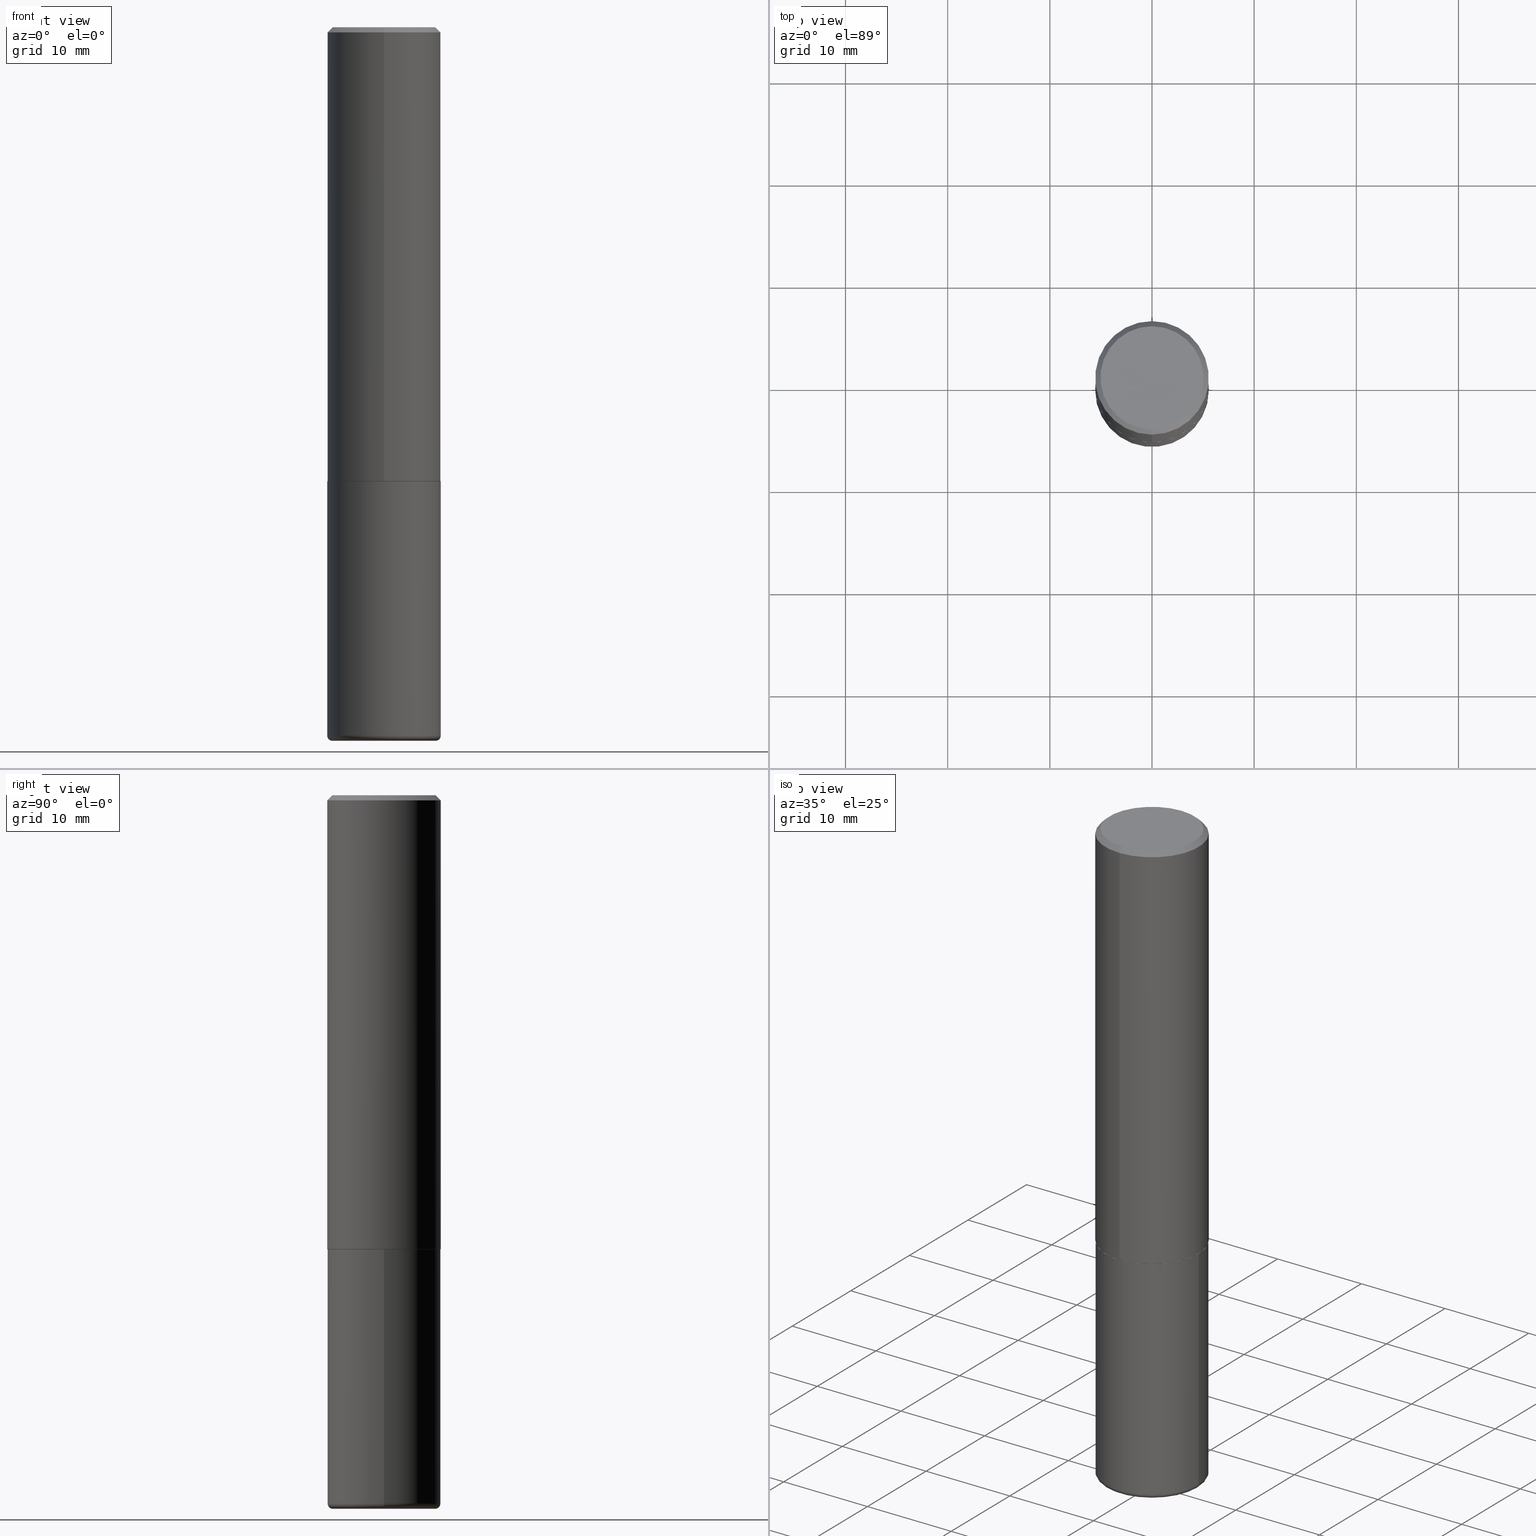
[diagram: canonical four-view strip — front | top / right | iso, engineering-drawing reading convention]
A machine part, canonical four-view strip (front | top / right | iso — engineering-drawing reading convention). The complete STEP part file that produces these views, byte-faithful:
ISO-10303-21;
HEADER;
FILE_DESCRIPTION (( 'STEP AP203' ),
    '1' );
FILE_NAME ('36857.STEP',
    '2024-03-01T18:17:31',
    ( '' ),
    ( '' ),
    'SwSTEP 2.0',
    'SolidWorks 2023',
    '' );
FILE_SCHEMA (( 'CONFIG_CONTROL_DESIGN' ));
ENDSEC;

DATA;
#1 = PRODUCT_DEFINITION ( 'UNKNOWN', '', #175, #6 ) ;
#2 = PRODUCT ( '36857', '36857', '', ( #87 ) ) ;
#3 =( NAMED_UNIT ( * ) PLANE_ANGLE_UNIT ( ) SI_UNIT ( $, .RADIAN. ) );
#4 = CIRCLE ( 'NONE', #245, 0.2187500000000000000 ) ;
#5 = CARTESIAN_POINT ( 'NONE',  ( 1.554312234475241442E-15, 0.2187499999999940603, -1.749000000000000554 ) ) ;
#6 = DESIGN_CONTEXT ( 'detailed design', #189, 'design' ) ;
#7 = CARTESIAN_POINT ( 'NONE',  ( 4.280256066996268323E-29, -6.109110444311672617E-15, -1.749999999999999556 ) ) ;
#8 = MANIFOLD_SOLID_BREP ( 'Body-Move/Copy2[2]', #265 ) ;
#9 = CARTESIAN_POINT ( 'NONE',  ( 0.1987500000000000100, -1.091960788723193160E-14, -2.729999999999999982 ) ) ;
#10 = ORIENTED_EDGE ( 'NONE', *, *, #148, .F. ) ;
#11 = AXIS2_PLACEMENT_3D ( 'NONE', #254, #160, #377 ) ;
#12 = ORIENTED_EDGE ( 'NONE', *, *, #256, .F. ) ;
#13 = CALENDAR_DATE ( 2024, 1, 3 ) ;
#14 = PERSON_AND_ORGANIZATION_ROLE ( 'classification_officer' ) ;
#15 = ORIENTED_EDGE ( 'NONE', *, *, #256, .T. ) ;
#16 = APPROVAL_STATUS ( 'not_yet_approved' ) ;
#17 = CARTESIAN_POINT ( 'NONE',  ( 1.457693458967008136E-15, 0.1987500000000000377, -7.750336534069830899E-16 ) ) ;
#18 = AXIS2_PLACEMENT_3D ( 'NONE', #150, #52, #402 ) ;
#19 = FACE_OUTER_BOUND ( 'NONE', #239, .T. ) ;
#20 = ORIENTED_EDGE ( 'NONE', *, *, #306, .F. ) ;
#21 = LINE ( 'NONE', #213, #343 ) ;
#22 = FACE_OUTER_BOUND ( 'NONE', #204, .T. ) ;
#23 = CIRCLE ( 'NONE', #53, 0.1987500000000000100 ) ;
#24 = CARTESIAN_POINT ( 'NONE',  ( 4.279570410823988484E-29, -6.110092342975504671E-15, -1.750000000000000000 ) ) ;
#25 = ORIENTED_EDGE ( 'NONE', *, *, #202, .F. ) ;
#26 = DIRECTION ( 'NONE',  ( -6.982962677686265922E-15, -1.000000000000000000, 3.746534391310986401E-15 ) ) ;
#27 = PRODUCT_RELATED_PRODUCT_CATEGORY ( 'detail', '', ( #2 ) ) ;
#28 = VERTEX_POINT ( 'NONE', #252 ) ;
#29 = FACE_OUTER_BOUND ( 'NONE', #384, .T. ) ;
#30 = AXIS2_PLACEMENT_3D ( 'NONE', #376, #62, #312 ) ;
#31 = APPROVAL_PERSON_ORGANIZATION ( #269, #251, #171 ) ;
#32 = CIRCLE ( 'NONE', #71, 0.1987500000000000100 ) ;
#33 = DIRECTION ( 'NONE',  ( 7.105427357601001859E-15, 1.000000000000000000, -3.491481338843145583E-15 ) ) ;
#34 = EDGE_CURVE ( 'NONE', #268, #336, #279, .T. ) ;
#35 = CARTESIAN_POINT ( 'NONE',  ( 4.280256066996268323E-29, -6.109110444311672617E-15, -1.749999999999999556 ) ) ;
#36 = CARTESIAN_POINT ( 'NONE',  ( 1.547206807117660550E-15, 0.2177499999999938651, -1.750000000000000444 ) ) ;
#37 =( GEOMETRIC_REPRESENTATION_CONTEXT ( 3 ) GLOBAL_UNCERTAINTY_ASSIGNED_CONTEXT ( ( #60 ) ) GLOBAL_UNIT_ASSIGNED_CONTEXT ( ( #289, #3, #243 ) ) REPRESENTATION_CONTEXT ( 'NONE', 'WORKASPACE' ) );
#38 = ORIENTED_EDGE ( 'NONE', *, *, #334, .F. ) ;
#39 = VERTEX_POINT ( 'NONE', #216 ) ;
#40 = EDGE_CURVE ( 'NONE', #188, #335, #378, .T. ) ;
#41 = DIRECTION ( 'NONE',  ( 1.000000000000000000, -6.982962677686265133E-15, 0.000000000000000000 ) ) ;
#42 = ORIENTED_EDGE ( 'NONE', *, *, #415, .F. ) ;
#43 = CARTESIAN_POINT ( 'NONE',  ( -1.500733937012521346E-15, -0.2187500000000000278, -0.01999999999999928571 ) ) ;
#44 = PERSON_AND_ORGANIZATION_ROLE ( 'creator' ) ;
#45 = CIRCLE ( 'NONE', #172, 0.01999999999999988939 ) ;
#46 = TOROIDAL_SURFACE ( 'NONE', #287, 0.1987500000000000100, 0.01999999999999988939 ) ;
#47 = COORDINATED_UNIVERSAL_TIME_OFFSET ( 5, 0, .BEHIND. ) ;
#48 = ORIENTED_EDGE ( 'NONE', *, *, #183, .F. ) ;
#49 = CALENDAR_DATE ( 2024, 1, 3 ) ;
#50 = EDGE_LOOP ( 'NONE', ( #264, #157, #96, #20 ) ) ;
#51 = PERSON_AND_ORGANIZATION ( #140, #328 ) ;
#52 = DIRECTION ( 'NONE',  ( -2.445860609712153688E-29, 3.490920253892385141E-15, 1.000000000000000000 ) ) ;
#53 = AXIS2_PLACEMENT_3D ( 'NONE', #237, #203, #41 ) ;
#54 = EDGE_CURVE ( 'NONE', #39, #363, #302, .T. ) ;
#55 = CIRCLE ( 'NONE', #304, 0.01999999999999988939 ) ;
#56 = ORIENTED_EDGE ( 'NONE', *, *, #352, .F. ) ;
#57 = DIRECTION ( 'NONE',  ( -2.445468806185136597E-29, 3.491481338843145583E-15, 1.000000000000000000 ) ) ;
#58 = ORIENTED_EDGE ( 'NONE', *, *, #98, .F. ) ;
#59 = DIRECTION ( 'NONE',  ( -2.445860609712153688E-29, 3.490920253892385141E-15, 1.000000000000000000 ) ) ;
#60 = UNCERTAINTY_MEASURE_WITH_UNIT (LENGTH_MEASURE( 1.000000000000000082E-05 ), #289, 'distance_accuracy_value', 'NONE');
#61 = ORIENTED_EDGE ( 'NONE', *, *, #288, .T. ) ;
#62 = DIRECTION ( 'NONE',  ( 2.438088387897960049E-29, -3.491481338843145188E-15, -1.000000000000000000 ) ) ;
#63 = CIRCLE ( 'NONE', #399, 0.2187500000000001943 ) ;
#64 = EDGE_LOOP ( 'NONE', ( #56, #167, #15, #161 ) ) ;
#65 = ADVANCED_FACE ( 'NONE', ( #147 ), #405, .T. ) ;
#66 = CYLINDRICAL_SURFACE ( 'NONE', #232, 0.2187500000000000833 ) ;
#67 = DIRECTION ( 'NONE',  ( -6.982962677686265922E-15, -1.000000000000000000, 3.490920253892385141E-15 ) ) ;
#68 = VERTEX_POINT ( 'NONE', #353 ) ;
#69 = CC_DESIGN_DATE_AND_TIME_ASSIGNMENT ( #272, #215, ( #366 ) ) ;
#70 = AXIS2_PLACEMENT_3D ( 'NONE', #181, #116, #178 ) ;
#71 = AXIS2_PLACEMENT_3D ( 'NONE', #230, #321, #347 ) ;
#72 = LINE ( 'NONE', #43, #224 ) ;
#73 = DIRECTION ( 'NONE',  ( -6.982962677686265922E-15, -1.000000000000000000, 3.763740060157423393E-15 ) ) ;
#74 = DIRECTION ( 'NONE',  ( 6.982962677686265922E-15, 1.000000000000000000, -3.490920253892384747E-15 ) ) ;
#75 = DIRECTION ( 'NONE',  ( -6.982962677686265922E-15, -1.000000000000000000, 3.490920253892384747E-15 ) ) ;
#76 = VECTOR ( 'NONE', #259, 39.37007874015748854 ) ;
#77 = ADVANCED_FACE ( 'NONE', ( #293 ), #134, .F. ) ;
#78 = CARTESIAN_POINT ( 'NONE',  ( 0.000000000000000000, 0.000000000000000000, 0.000000000000000000 ) ) ;
#79 = ORIENTED_EDGE ( 'NONE', *, *, #415, .T. ) ;
#80 = CYLINDRICAL_SURFACE ( 'NONE', #390, 0.2187500000000000833 ) ;
#81 = DIRECTION ( 'NONE',  ( 1.000000000000000000, 0.000000000000000000, 0.000000000000000000 ) ) ;
#82 = EDGE_CURVE ( 'NONE', #388, #145, #385, .T. ) ;
#83 = EDGE_LOOP ( 'NONE', ( #106, #270, #214, #368 ) ) ;
#84 = APPROVAL_STATUS ( 'not_yet_approved' ) ;
#85 = CIRCLE ( 'NONE', #180, 0.2177499999999999991 ) ;
#86 = ORIENTED_EDGE ( 'NONE', *, *, #400, .T. ) ;
#87 = MECHANICAL_CONTEXT ( 'NONE', #325, 'mechanical' ) ;
#88 = FACE_OUTER_BOUND ( 'NONE', #64, .T. ) ;
#89 = AXIS2_PLACEMENT_3D ( 'NONE', #308, #92, #195 ) ;
#90 = CARTESIAN_POINT ( 'NONE',  ( 6.676129840885423672E-29, -9.531744055041786561E-15, -2.729999999999999982 ) ) ;
#91 = FACE_OUTER_BOUND ( 'NONE', #413, .T. ) ;
#92 = DIRECTION ( 'NONE',  ( -2.445468806185136597E-29, 3.491481338843145583E-15, 1.000000000000000000 ) ) ;
#93 = CC_DESIGN_PERSON_AND_ORGANIZATION_ASSIGNMENT ( #299, #176, ( #175 ) ) ;
#94 = CARTESIAN_POINT ( 'NONE',  ( 1.986362963668964769E-45, -2.835089895932280232E-31, -8.121325294587144203E-17 ) ) ;
#95 = CIRCLE ( 'NONE', #295, 0.1987500000000000377 ) ;
#96 = ORIENTED_EDGE ( 'NONE', *, *, #193, .F. ) ;
#97 = DIRECTION ( 'NONE',  ( -2.445860609712153688E-29, 3.490920253892385141E-15, 1.000000000000000000 ) ) ;
#98 = EDGE_CURVE ( 'NONE', #39, #268, #322, .T. ) ;
#99 = DIRECTION ( 'NONE',  ( -2.445468806185136877E-29, 3.491481338843145188E-15, 1.000000000000000000 ) ) ;
#100 = ORIENTED_EDGE ( 'NONE', *, *, #263, .T. ) ;
#101 = TOROIDAL_SURFACE ( 'NONE', #355, 0.1987500000000000100, 0.01999999999999988939 ) ;
#102 = APPROVAL_PERSON_ORGANIZATION ( #51, #104, #401 ) ;
#103 = DIRECTION ( 'NONE',  ( -2.445860609712153688E-29, 3.490920253892385141E-15, 1.000000000000000000 ) ) ;
#104 = APPROVAL ( #16, 'UNSPECIFIED' ) ;
#105 = ORIENTED_EDGE ( 'NONE', *, *, #148, .T. ) ;
#106 = ORIENTED_EDGE ( 'NONE', *, *, #34, .T. ) ;
#107 = APPROVAL_DATE_TIME ( #244, #340 ) ;
#108 = ADVANCED_FACE ( 'NONE', ( #19 ), #80, .T. ) ;
#109 = VERTEX_POINT ( 'NONE', #371 ) ;
#110 = CALENDAR_DATE ( 2024, 1, 3 ) ;
#111 = ORIENTED_EDGE ( 'NONE', *, *, #225, .T. ) ;
#112 = PERSON_AND_ORGANIZATION_ROLE ( 'creator' ) ;
#113 = CONICAL_SURFACE ( 'NONE', #164, 0.2177499999999999991, 0.7853981633976532262 ) ;
#114 = ORIENTED_EDGE ( 'NONE', *, *, #133, .F. ) ;
#115 = PERSON_AND_ORGANIZATION ( #140, #328 ) ;
#116 = DIRECTION ( 'NONE',  ( -2.445860609712153688E-29, 3.490920253892385141E-15, 1.000000000000000000 ) ) ;
#117 = ADVANCED_FACE ( 'NONE', ( #291 ), #101, .T. ) ;
#118 = CARTESIAN_POINT ( 'NONE',  ( 4.891721219424319847E-31, -6.981840507784787292E-17, -0.02000000000000005246 ) ) ;
#119 = VECTOR ( 'NONE', #223, 39.37007874015748143 ) ;
#120 = CYLINDRICAL_SURFACE ( 'NONE', #89, 0.2187500000000000000 ) ;
#121 = AXIS2_PLACEMENT_3D ( 'NONE', #168, #236, #74 ) ;
#122 = ORIENTED_EDGE ( 'NONE', *, *, #352, .T. ) ;
#123 = DIRECTION ( 'NONE',  ( -2.445860609712153688E-29, 3.490920253892384747E-15, 1.000000000000000000 ) ) ;
#124 = FACE_OUTER_BOUND ( 'NONE', #242, .T. ) ;
#125 = ORIENTED_EDGE ( 'NONE', *, *, #263, .F. ) ;
#126 = DIRECTION ( 'NONE',  ( -2.445468806185136597E-29, 3.491481338843145583E-15, 1.000000000000000000 ) ) ;
#127 = AXIS2_PLACEMENT_3D ( 'NONE', #241, #249, #266 ) ;
#128 = ADVANCED_FACE ( 'NONE', ( #88 ), #231, .T. ) ;
#129 = DIRECTION ( 'NONE',  ( -2.445468806185136597E-29, 3.491481338843145583E-15, 1.000000000000000000 ) ) ;
#130 = FACE_OUTER_BOUND ( 'NONE', #83, .T. ) ;
#131 = DIRECTION ( 'NONE',  ( -2.445860609712153688E-29, 3.490920253892385141E-15, 1.000000000000000000 ) ) ;
#132 = VECTOR ( 'NONE', #99, 39.37007874015748143 ) ;
#133 = EDGE_CURVE ( 'NONE', #145, #173, #21, .T. ) ;
#134 = PLANE ( 'NONE',  #196 ) ;
#135 =( LENGTH_UNIT ( ) NAMED_UNIT ( * ) SI_UNIT ( $, .METRE. ) );
#136 = DIRECTION ( 'NONE',  ( 1.000000000000000000, -6.982962677686274599E-15, 0.000000000000000000 ) ) ;
#137 = APPLICATION_PROTOCOL_DEFINITION ( 'international standard', 'config_control_design', 1994, #189 ) ;
#138 = CC_DESIGN_SECURITY_CLASSIFICATION ( #366, ( #175 ) ) ;
#139 = EDGE_CURVE ( 'NONE', #363, #39, #85, .T. ) ;
#140 = PERSON ( 'UNSPECIFIED', 'UNSPECIFIED', 'UNSPECIFIED', ('UNSPECIFIED'), ('UNSPECIFIED'), ('UNSPECIFIED') ) ;
#141 = VERTEX_POINT ( 'NONE', #17 ) ;
#142 = APPROVAL_DATE_TIME ( #364, #251 ) ;
#143 = ORIENTED_EDGE ( 'NONE', *, *, #283, .T. ) ;
#144 = PERSON_AND_ORGANIZATION ( #140, #328 ) ;
#145 = VERTEX_POINT ( 'NONE', #262 ) ;
#146 = APPROVAL_PERSON_ORGANIZATION ( #358, #340, #333 ) ;
#147 = FACE_OUTER_BOUND ( 'NONE', #330, .T. ) ;
#148 = EDGE_CURVE ( 'NONE', #28, #68, #23, .T. ) ;
#149 = ORIENTED_EDGE ( 'NONE', *, *, #139, .T. ) ;
#150 = CARTESIAN_POINT ( 'NONE',  ( 4.277810206386556213E-29, -6.105619524057781466E-15, -1.748999999999999888 ) ) ;
#151 = ORIENTED_EDGE ( 'NONE', *, *, #98, .T. ) ;
#152 = DIRECTION ( 'NONE',  ( -6.982962677686265922E-15, -1.000000000000000000, 3.763740060157423393E-15 ) ) ;
#153 = EDGE_CURVE ( 'NONE', #68, #388, #45, .T. ) ;
#154 = LINE ( 'NONE', #257, #391 ) ;
#155 = MANIFOLD_SOLID_BREP ( 'Body-Move/Copy2[1]', #365 ) ;
#156 = DIRECTION ( 'NONE',  ( -6.982962677686265922E-15, -1.000000000000000000, 3.490920253892385141E-15 ) ) ;
#157 = ORIENTED_EDGE ( 'NONE', *, *, #133, .T. ) ;
#158 = DIRECTION ( 'NONE',  ( 1.000000000000000000, -6.982962677686267499E-15, 0.000000000000000000 ) ) ;
#159 = CIRCLE ( 'NONE', #273, 0.2187500000000000000 ) ;
#160 = DIRECTION ( 'NONE',  ( 2.445860609712153688E-29, -3.490920253892385141E-15, -1.000000000000000000 ) ) ;
#161 = ORIENTED_EDGE ( 'NONE', *, *, #369, .T. ) ;
#162 = ADVANCED_FACE ( 'NONE', ( #258 ), #120, .T. ) ;
#163 = CARTESIAN_POINT ( 'NONE',  ( 0.2187500000000000000, -7.637615428719375514E-15, -1.750000000000000000 ) ) ;
#164 = AXIS2_PLACEMENT_3D ( 'NONE', #282, #344, #346 ) ;
#165 = DIRECTION ( 'NONE',  ( -2.445860609712153688E-29, 3.490920253892385141E-15, 1.000000000000000000 ) ) ;
#166 = DIRECTION ( 'NONE',  ( -2.445860609712153688E-29, 3.490920253892384747E-15, 1.000000000000000000 ) ) ;
#167 = ORIENTED_EDGE ( 'NONE', *, *, #225, .F. ) ;
#168 = CARTESIAN_POINT ( 'NONE',  ( 1.387863832190145627E-15, 0.1987500000000000377, -7.344270269340474490E-16 ) ) ;
#169 = ORIENTED_EDGE ( 'NONE', *, *, #40, .T. ) ;
#170 = EDGE_LOOP ( 'NONE', ( #79, #323, #361, #250 ) ) ;
#171 = APPROVAL_ROLE ( '' ) ;
#172 = AXIS2_PLACEMENT_3D ( 'NONE', #9, #275, #136 ) ;
#173 = VERTEX_POINT ( 'NONE', #255 ) ;
#174 = DATE_TIME_ROLE ( 'creation_date' ) ;
#175 = PRODUCT_DEFINITION_FORMATION_WITH_SPECIFIED_SOURCE ( 'ANY', '', #2, .NOT_KNOWN. ) ;
#176 = PERSON_AND_ORGANIZATION_ROLE ( 'design_supplier' ) ;
#177 = CC_DESIGN_PERSON_AND_ORGANIZATION_ASSIGNMENT ( #367, #14, ( #366 ) ) ;
#178 = DIRECTION ( 'NONE',  ( -6.982962677686265922E-15, -1.000000000000000000, 3.763740060157423393E-15 ) ) ;
#179 = DIRECTION ( 'NONE',  ( 0.000000000000000000, 0.000000000000000000, 1.000000000000000000 ) ) ;
#180 = AXIS2_PLACEMENT_3D ( 'NONE', #7, #320, #152 ) ;
#181 = CARTESIAN_POINT ( 'NONE',  ( 4.280256066996268323E-29, -6.109110444311672617E-15, -1.749999999999999556 ) ) ;
#182 = DIRECTION ( 'NONE',  ( -4.937700262165559362E-15, -0.7071067811866899033, 0.7071067811864050201 ) ) ;
#183 = EDGE_CURVE ( 'NONE', #173, #341, #207, .T. ) ;
#184 = DIRECTION ( 'NONE',  ( 2.438088387897960049E-29, -3.491481338843145188E-15, -1.000000000000000000 ) ) ;
#185 = ORIENTED_EDGE ( 'NONE', *, *, #139, .F. ) ;
#186 = CARTESIAN_POINT ( 'NONE',  ( -1.527523085743829231E-15, -0.2187500000000063005, -1.748999999999999000 ) ) ;
#187 = CC_DESIGN_APPROVAL ( #104, ( #366 ) ) ;
#188 = VERTEX_POINT ( 'NONE', #412 ) ;
#189 = APPLICATION_CONTEXT ( 'configuration controlled 3d designs of mechanical parts and assemblies' ) ;
#190 = DIRECTION ( 'NONE',  ( -2.445860609712153688E-29, 3.490920253892385141E-15, 1.000000000000000000 ) ) ;
#191 = CARTESIAN_POINT ( 'NONE',  ( 6.676129840885423672E-29, -9.531744055041786561E-15, -2.729999999999999982 ) ) ;
#192 = LINE ( 'NONE', #313, #132 ) ;
#193 = EDGE_CURVE ( 'NONE', #341, #173, #159, .T. ) ;
#194 = ORIENTED_EDGE ( 'NONE', *, *, #54, .F. ) ;
#195 = DIRECTION ( 'NONE',  ( 1.000000000000000000, -6.982962677686266711E-15, 4.876176775795935232E-29 ) ) ;
#196 = AXIS2_PLACEMENT_3D ( 'NONE', #360, #166, #75 ) ;
#197 = ADVANCED_FACE ( 'NONE', ( #22 ), #372, .F. ) ;
#198 = CARTESIAN_POINT ( 'NONE',  ( 1.550759520796461843E-15, 0.2177499999999938651, -1.750000000000000444 ) ) ;
#199 = DIRECTION ( 'NONE',  ( -6.982962677686265922E-15, -1.000000000000000000, 3.490920253892385141E-15 ) ) ;
#200 = LOCAL_TIME ( 13, 17, 31.00000000000000000, #205 ) ;
#201 = LENGTH_MEASURE_WITH_UNIT ( LENGTH_MEASURE( 0.02539999999999999897 ), #135 );
#202 = EDGE_CURVE ( 'NONE', #336, #335, #154, .T. ) ;
#203 = DIRECTION ( 'NONE',  ( -2.445468806185136597E-29, 3.491481338843145583E-15, 1.000000000000000000 ) ) ;
#204 = EDGE_LOOP ( 'NONE', ( #297, #208 ) ) ;
#205 = COORDINATED_UNIVERSAL_TIME_OFFSET ( 5, 0, .BEHIND. ) ;
#206 = CALENDAR_DATE ( 2024, 1, 3 ) ;
#207 = CIRCLE ( 'NONE', #285, 0.2187500000000000000 ) ;
#208 = ORIENTED_EDGE ( 'NONE', *, *, #183, .T. ) ;
#209 = DATE_AND_TIME ( #110, #274 ) ;
#210 = ORIENTED_EDGE ( 'NONE', *, *, #153, .T. ) ;
#211 = APPLICATION_PROTOCOL_DEFINITION ( 'international standard', 'config_control_design', 1994, #325 ) ;
#212 = ADVANCED_FACE ( 'NONE', ( #124 ), #260, .T. ) ;
#213 = CARTESIAN_POINT ( 'NONE',  ( -0.2187500000000000000, 1.554312234475219157E-15, -1.076017050993260622E-29 ) ) ;
#214 = ORIENTED_EDGE ( 'NONE', *, *, #40, .F. ) ;
#215 = DATE_TIME_ROLE ( 'classification_date' ) ;
#216 = CARTESIAN_POINT ( 'NONE',  ( -1.520540123066141639E-15, -0.2177500000000061053, -1.749999999999998890 ) ) ;
#217 = VECTOR ( 'NONE', #182, 39.37007874015748854 ) ;
#218 = LOCAL_TIME ( 13, 17, 31.00000000000000000, #240 ) ;
#219 = DIRECTION ( 'NONE',  ( -2.445468806185136597E-29, 3.491481338843145583E-15, 1.000000000000000000 ) ) ;
#220 = ADVANCED_FACE ( 'NONE', ( #29 ), #318, .T. ) ;
#221 = CARTESIAN_POINT ( 'NONE',  ( 0.000000000000000000, 0.000000000000000000, 0.000000000000000000 ) ) ;
#222 = DIRECTION ( 'NONE',  ( -1.000000000000000000, 6.982962677686265922E-15, -4.876176775795935793E-29 ) ) ;
#223 = DIRECTION ( 'NONE',  ( 4.937700262164541731E-15, 0.7071067811865442421, -0.7071067811865507924 ) ) ;
#224 = VECTOR ( 'NONE', #235, 39.37007874015748143 ) ;
#225 = EDGE_CURVE ( 'NONE', #141, #109, #95, .T. ) ;
#226 = CARTESIAN_POINT ( 'NONE',  ( 4.279570410823988484E-29, -6.110092342975504671E-15, -1.750000000000000000 ) ) ;
#227 = DIRECTION ( 'NONE',  ( 1.000000000000000000, -6.982962677686266711E-15, 4.883557194083112901E-29 ) ) ;
#228 = CARTESIAN_POINT ( 'NONE',  ( 6.676129840885423672E-29, -9.531744055041786561E-15, -2.729999999999999982 ) ) ;
#229 = ORIENTED_EDGE ( 'NONE', *, *, #334, .T. ) ;
#230 = CARTESIAN_POINT ( 'NONE',  ( 6.725039217009124520E-29, -9.601573681818649859E-15, -2.750000000000000000 ) ) ;
#231 = CONICAL_SURFACE ( 'NONE', #416, 0.2187499999999999445, 0.7853981633974471688 ) ;
#232 = AXIS2_PLACEMENT_3D ( 'NONE', #221, #190, #67 ) ;
#233 = CC_DESIGN_PERSON_AND_ORGANIZATION_ASSIGNMENT ( #144, #247, ( #2 ) ) ;
#234 = CARTESIAN_POINT ( 'NONE',  ( -1.527523085743871237E-15, -0.2187500000000000833, 7.636388055389595701E-16 ) ) ;
#235 = DIRECTION ( 'NONE',  ( -4.851104656540957964E-15, -0.7071067811865491270, -0.7071067811865459074 ) ) ;
#236 = DIRECTION ( 'NONE',  ( 2.445860609712153688E-29, -3.490920253892384747E-15, -1.000000000000000000 ) ) ;
#237 = CARTESIAN_POINT ( 'NONE',  ( 6.725039217009124520E-29, -9.601573681818649859E-15, -2.750000000000000000 ) ) ;
#238 = DIRECTION ( 'NONE',  ( -2.445860609712153688E-29, 3.490920253892384747E-15, 1.000000000000000000 ) ) ;
#239 = EDGE_LOOP ( 'NONE', ( #25, #61, #86, #393 ) ) ;
#240 = COORDINATED_UNIVERSAL_TIME_OFFSET ( 5, 0, .BEHIND. ) ;
#241 = CARTESIAN_POINT ( 'NONE',  ( 6.676129840885423672E-29, -9.531744055041786561E-15, -2.729999999999999982 ) ) ;
#242 = EDGE_LOOP ( 'NONE', ( #125, #122, #169, #12 ) ) ;
#243 =( NAMED_UNIT ( * ) SI_UNIT ( $, .STERADIAN. ) SOLID_ANGLE_UNIT ( ) );
#244 = DATE_AND_TIME ( #13, #218 ) ;
#245 = AXIS2_PLACEMENT_3D ( 'NONE', #228, #126, #310 ) ;
#246 = ORIENTED_EDGE ( 'NONE', *, *, #54, .T. ) ;
#247 = PERSON_AND_ORGANIZATION_ROLE ( 'design_owner' ) ;
#248 = APPROVAL_DATE_TIME ( #394, #104 ) ;
#249 = DIRECTION ( 'NONE',  ( -2.445468806185136597E-29, 3.491481338843145583E-15, 1.000000000000000000 ) ) ;
#250 = ORIENTED_EDGE ( 'NONE', *, *, #153, .F. ) ;
#251 = APPROVAL ( #84, 'UNSPECIFIED' ) ;
#252 = CARTESIAN_POINT ( 'NONE',  ( -0.1987500000000000100, -8.083400907531010713E-15, -2.750000000000000000 ) ) ;
#253 = DIRECTION ( 'NONE',  ( -2.445860609712153688E-29, 3.490920253892385141E-15, 1.000000000000000000 ) ) ;
#254 = CARTESIAN_POINT ( 'NONE',  ( 4.891721219424319847E-31, -6.981840507784787292E-17, -0.02000000000000005246 ) ) ;
#255 = CARTESIAN_POINT ( 'NONE',  ( -0.2187500000000000000, -6.266605964533427643E-15, -1.750000000000000000 ) ) ;
#256 = EDGE_CURVE ( 'NONE', #141, #335, #383, .T. ) ;
#257 = CARTESIAN_POINT ( 'NONE',  ( 1.554312234475219551E-15, 0.2187500000000000833, -7.636388055389595701E-16 ) ) ;
#258 = FACE_OUTER_BOUND ( 'NONE', #50, .T. ) ;
#259 = DIRECTION ( 'NONE',  ( 5.024295867789091064E-15, 0.7071067811866947883, 0.7071067811864001351 ) ) ;
#260 = CONICAL_SURFACE ( 'NONE', #11, 0.2187499999999999445, 0.7853981633974471688 ) ;
#261 = FACE_OUTER_BOUND ( 'NONE', #276, .T. ) ;
#262 = CARTESIAN_POINT ( 'NONE',  ( -0.2187499999999999445, -7.977431820566568982E-15, -2.729999999999999982 ) ) ;
#263 = EDGE_CURVE ( 'NONE', #109, #141, #309, .T. ) ;
#264 = ORIENTED_EDGE ( 'NONE', *, *, #82, .T. ) ;
#265 = CLOSED_SHELL ( 'NONE', ( #290, #298, #212, #128, #108, #389, #77, #359 ) ) ;
#266 = DIRECTION ( 'NONE',  ( 1.000000000000000000, -6.982962677686262766E-15, 0.000000000000000000 ) ) ;
#267 = LOCAL_TIME ( 13, 17, 31.00000000000000000, #47 ) ;
#268 = VERTEX_POINT ( 'NONE', #186 ) ;
#269 = PERSON_AND_ORGANIZATION ( #140, #328 ) ;
#270 = ORIENTED_EDGE ( 'NONE', *, *, #202, .T. ) ;
#271 = CC_DESIGN_PERSON_AND_ORGANIZATION_ASSIGNMENT ( #329, #44, ( #175 ) ) ;
#272 = DATE_AND_TIME ( #300, #267 ) ;
#273 = AXIS2_PLACEMENT_3D ( 'NONE', #284, #410, #158 ) ;
#274 = LOCAL_TIME ( 13, 17, 31.00000000000000000, #397 ) ;
#275 = DIRECTION ( 'NONE',  ( -6.982962677686266711E-15, -1.000000000000000000, 3.491481338843145583E-15 ) ) ;
#276 = EDGE_LOOP ( 'NONE', ( #111, #100 ) ) ;
#277 = DIRECTION ( 'NONE',  ( -2.445860609712153688E-29, 3.490920253892385141E-15, 1.000000000000000000 ) ) ;
#278 = DIRECTION ( 'NONE',  ( 2.445860609712153688E-29, -3.490920253892385141E-15, -1.000000000000000000 ) ) ;
#279 = CIRCLE ( 'NONE', #18, 0.2187500000000001943 ) ;
#280 = CONICAL_SURFACE ( 'NONE', #317, 0.2177499999999999991, 0.7853981633976532262 ) ;
#281 = DIRECTION ( 'NONE',  ( 1.000000000000000000, -6.982962677686267499E-15, 0.000000000000000000 ) ) ;
#282 = CARTESIAN_POINT ( 'NONE',  ( 4.280256066996268323E-29, -6.109110444311672617E-15, -1.749999999999999556 ) ) ;
#283 = EDGE_CURVE ( 'NONE', #145, #388, #4, .T. ) ;
#284 = CARTESIAN_POINT ( 'NONE',  ( 4.279570410823988484E-29, -6.110092342975504671E-15, -1.750000000000000000 ) ) ;
#285 = AXIS2_PLACEMENT_3D ( 'NONE', #226, #414, #281 ) ;
#286 = CARTESIAN_POINT ( 'NONE',  ( 1.527523085743870843E-15, 0.2187499999999998890, -0.02000000000000081574 ) ) ;
#287 = AXIS2_PLACEMENT_3D ( 'NONE', #191, #129, #227 ) ;
#288 = EDGE_CURVE ( 'NONE', #336, #268, #63, .T. ) ;
#289 =( CONVERSION_BASED_UNIT ( 'INCH', #201 ) LENGTH_UNIT ( ) NAMED_UNIT ( #403 ) );
#290 = ADVANCED_FACE ( 'NONE', ( #91 ), #113, .T. ) ;
#291 = FACE_OUTER_BOUND ( 'NONE', #404, .T. ) ;
#292 = LINE ( 'NONE', #234, #296 ) ;
#293 = FACE_OUTER_BOUND ( 'NONE', #374, .T. ) ;
#294 = ORIENTED_EDGE ( 'NONE', *, *, #288, .F. ) ;
#295 = AXIS2_PLACEMENT_3D ( 'NONE', #94, #253, #156 ) ;
#296 = VECTOR ( 'NONE', #238, 39.37007874015748143 ) ;
#297 = ORIENTED_EDGE ( 'NONE', *, *, #193, .T. ) ;
#298 = ADVANCED_FACE ( 'NONE', ( #130 ), #66, .T. ) ;
#299 = PERSON_AND_ORGANIZATION ( #140, #328 ) ;
#300 = CALENDAR_DATE ( 2024, 1, 3 ) ;
#301 = DIRECTION ( 'NONE',  ( -2.445468806185136877E-29, 3.491481338843145188E-15, 1.000000000000000000 ) ) ;
#302 = CIRCLE ( 'NONE', #70, 0.2177499999999999991 ) ;
#303 = COORDINATED_UNIVERSAL_TIME_OFFSET ( 5, 0, .BEHIND. ) ;
#304 = AXIS2_PLACEMENT_3D ( 'NONE', #348, #33, #406 ) ;
#305 = CARTESIAN_POINT ( 'NONE',  ( 0.000000000000000000, 0.000000000000000000, 0.000000000000000000 ) ) ;
#306 = EDGE_CURVE ( 'NONE', #388, #341, #192, .T. ) ;
#307 = DIRECTION ( 'NONE',  ( 6.982962677686265922E-15, 1.000000000000000000, -3.492862791899308860E-15 ) ) ;
#308 = CARTESIAN_POINT ( 'NONE',  ( 0.000000000000000000, 0.000000000000000000, 0.000000000000000000 ) ) ;
#309 = CIRCLE ( 'NONE', #349, 0.1987500000000000377 ) ;
#310 = DIRECTION ( 'NONE',  ( 1.000000000000000000, -6.982962677686262766E-15, 0.000000000000000000 ) ) ;
#311 = ORIENTED_EDGE ( 'NONE', *, *, #283, .F. ) ;
#312 = DIRECTION ( 'NONE',  ( -1.000000000000000000, 6.982962677686265922E-15, -4.876176775795935793E-29 ) ) ;
#313 = CARTESIAN_POINT ( 'NONE',  ( 0.2187500000000000000, -1.527523085743870843E-15, 1.066663669705360885E-29 ) ) ;
#314 = CC_DESIGN_DATE_AND_TIME_ASSIGNMENT ( #209, #174, ( #1 ) ) ;
#315 = EDGE_LOOP ( 'NONE', ( #38, #149, #151, #294 ) ) ;
#316 = AXIS2_PLACEMENT_3D ( 'NONE', #24, #184, #222 ) ;
#317 = AXIS2_PLACEMENT_3D ( 'NONE', #35, #131, #73 ) ;
#318 = PLANE ( 'NONE',  #30 ) ;
#319 = CARTESIAN_POINT ( 'NONE',  ( 4.891721219424319847E-31, -6.981840507784787292E-17, -0.02000000000000005246 ) ) ;
#320 = DIRECTION ( 'NONE',  ( -2.445860609712153688E-29, 3.490920253892385141E-15, 1.000000000000000000 ) ) ;
#321 = DIRECTION ( 'NONE',  ( -2.445468806185136597E-29, 3.491481338843145583E-15, 1.000000000000000000 ) ) ;
#322 = LINE ( 'NONE', #392, #217 ) ;
#323 = ORIENTED_EDGE ( 'NONE', *, *, #324, .T. ) ;
#324 = EDGE_CURVE ( 'NONE', #28, #145, #55, .T. ) ;
#325 = APPLICATION_CONTEXT ( 'configuration controlled 3d designs of mechanical parts and assemblies' ) ;
#326 = SHAPE_DEFINITION_REPRESENTATION ( #351, #379 ) ;
#327 = AXIS2_PLACEMENT_3D ( 'NONE', #305, #57, #357 ) ;
#328 = ORGANIZATION ( 'UNSPECIFIED', 'UNSPECIFIED', '' ) ;
#329 = PERSON_AND_ORGANIZATION ( #140, #328 ) ;
#330 = EDGE_LOOP ( 'NONE', ( #114, #143, #411, #48 ) ) ;
#331 = CARTESIAN_POINT ( 'NONE',  ( 0.000000000000000000, 0.000000000000000000, 0.000000000000000000 ) ) ;
#332 = DIRECTION ( 'NONE',  ( -6.982962677686265922E-15, -1.000000000000000000, 3.492862791899308860E-15 ) ) ;
#333 = APPROVAL_ROLE ( '' ) ;
#334 = EDGE_CURVE ( 'NONE', #363, #336, #339, .T. ) ;
#335 = VERTEX_POINT ( 'NONE', #354 ) ;
#336 = VERTEX_POINT ( 'NONE', #5 ) ;
#337 = DIRECTION ( 'NONE',  ( -6.982962677686265922E-15, -1.000000000000000000, 3.492862791899308860E-15 ) ) ;
#338 = CARTESIAN_POINT ( 'NONE',  ( 4.891721219424319847E-31, -6.981840507784787292E-17, -0.02000000000000005246 ) ) ;
#339 = LINE ( 'NONE', #36, #76 ) ;
#340 = APPROVAL ( #398, 'UNSPECIFIED' ) ;
#341 = VERTEX_POINT ( 'NONE', #163 ) ;
#342 = DIRECTION ( 'NONE',  ( -6.982962677686265922E-15, -1.000000000000000000, 3.490920253892385141E-15 ) ) ;
#343 = VECTOR ( 'NONE', #301, 39.37007874015748143 ) ;
#344 = DIRECTION ( 'NONE',  ( -2.445860609712153688E-29, 3.490920253892385141E-15, 1.000000000000000000 ) ) ;
#345 = ORIENTED_EDGE ( 'NONE', *, *, #34, .F. ) ;
#346 = DIRECTION ( 'NONE',  ( -6.982962677686265922E-15, -1.000000000000000000, 3.763740060157423393E-15 ) ) ;
#347 = DIRECTION ( 'NONE',  ( 1.000000000000000000, -6.982962677686265133E-15, 0.000000000000000000 ) ) ;
#348 = CARTESIAN_POINT ( 'NONE',  ( -0.1987500000000000100, -8.119540367718587568E-15, -2.729999999999999982 ) ) ;
#349 = AXIS2_PLACEMENT_3D ( 'NONE', #381, #97, #342 ) ;
#350 = CIRCLE ( 'NONE', #417, 0.2187499999999999445 ) ;
#351 = PRODUCT_DEFINITION_SHAPE ( 'NONE', 'NONE',  #1 ) ;
#352 = EDGE_CURVE ( 'NONE', #109, #188, #72, .T. ) ;
#353 = CARTESIAN_POINT ( 'NONE',  ( 0.1987500000000000100, -1.098943751400879489E-14, -2.750000000000000000 ) ) ;
#354 = CARTESIAN_POINT ( 'NONE',  ( 1.527523085743870843E-15, 0.2187499999999998890, -0.02000000000000081574 ) ) ;
#355 = AXIS2_PLACEMENT_3D ( 'NONE', #90, #219, #370 ) ;
#356 = LOCAL_TIME ( 13, 17, 31.00000000000000000, #303 ) ;
#357 = DIRECTION ( 'NONE',  ( 1.000000000000000000, -6.982962677686266711E-15, 4.876176775795935232E-29 ) ) ;
#358 = PERSON_AND_ORGANIZATION ( #140, #328 ) ;
#359 = ADVANCED_FACE ( 'NONE', ( #261 ), #387, .F. ) ;
#360 = CARTESIAN_POINT ( 'NONE',  ( 4.280256066996268323E-29, -6.109110444311672617E-15, -1.749999999999999556 ) ) ;
#361 = ORIENTED_EDGE ( 'NONE', *, *, #82, .F. ) ;
#362 = SECURITY_CLASSIFICATION_LEVEL ( 'unclassified' ) ;
#363 = VERTEX_POINT ( 'NONE', #198 ) ;
#364 = DATE_AND_TIME ( #49, #200 ) ;
#365 = CLOSED_SHELL ( 'NONE', ( #162, #373, #197, #65, #117, #220 ) ) ;
#366 = SECURITY_CLASSIFICATION ( '', '', #362 ) ;
#367 = PERSON_AND_ORGANIZATION ( #140, #328 ) ;
#368 = ORIENTED_EDGE ( 'NONE', *, *, #400, .F. ) ;
#369 = EDGE_CURVE ( 'NONE', #335, #188, #350, .T. ) ;
#370 = DIRECTION ( 'NONE',  ( 1.000000000000000000, -6.982962677686266711E-15, 4.883557194083112901E-29 ) ) ;
#371 = CARTESIAN_POINT ( 'NONE',  ( -1.432128957034806803E-15, -0.1987500000000000377, 6.126071475152403291E-16 ) ) ;
#372 = PLANE ( 'NONE',  #316 ) ;
#373 = ADVANCED_FACE ( 'NONE', ( #395 ), #46, .T. ) ;
#374 = EDGE_LOOP ( 'NONE', ( #194, #185 ) ) ;
#375 = FACE_OUTER_BOUND ( 'NONE', #315, .T. ) ;
#376 = CARTESIAN_POINT ( 'NONE',  ( 6.725039217009124520E-29, -9.601573681818649859E-15, -2.750000000000000000 ) ) ;
#377 = DIRECTION ( 'NONE',  ( 6.982962677686265922E-15, 1.000000000000000000, -3.492862791899308860E-15 ) ) ;
#378 = CIRCLE ( 'NONE', #407, 0.2187499999999999445 ) ;
#379 = ADVANCED_BREP_SHAPE_REPRESENTATION ( '36857', ( #155, #8, #386 ), #37 ) ;
#380 = CC_DESIGN_APPROVAL ( #340, ( #1 ) ) ;
#381 = CARTESIAN_POINT ( 'NONE',  ( 1.986362963668964769E-45, -2.835089895932280232E-31, -8.121325294587144203E-17 ) ) ;
#382 = CC_DESIGN_PERSON_AND_ORGANIZATION_ASSIGNMENT ( #115, #112, ( #1 ) ) ;
#383 = LINE ( 'NONE', #286, #119 ) ;
#384 = EDGE_LOOP ( 'NONE', ( #42, #10 ) ) ;
#385 = CIRCLE ( 'NONE', #127, 0.2187500000000000000 ) ;
#386 = AXIS2_PLACEMENT_3D ( 'NONE', #331, #179, #81 ) ;
#387 = PLANE ( 'NONE',  #121 ) ;
#388 = VERTEX_POINT ( 'NONE', #409 ) ;
#389 = ADVANCED_FACE ( 'NONE', ( #375 ), #280, .T. ) ;
#390 = AXIS2_PLACEMENT_3D ( 'NONE', #78, #277, #199 ) ;
#391 = VECTOR ( 'NONE', #123, 39.37007874015748143 ) ;
#392 = CARTESIAN_POINT ( 'NONE',  ( -1.520540123066141639E-15, -0.2177500000000061053, -1.749999999999998890 ) ) ;
#393 = ORIENTED_EDGE ( 'NONE', *, *, #369, .F. ) ;
#394 = DATE_AND_TIME ( #206, #356 ) ;
#395 = FACE_OUTER_BOUND ( 'NONE', #170, .T. ) ;
#396 = ORIENTED_EDGE ( 'NONE', *, *, #324, .F. ) ;
#397 = COORDINATED_UNIVERSAL_TIME_OFFSET ( 5, 0, .BEHIND. ) ;
#398 = APPROVAL_STATUS ( 'not_yet_approved' ) ;
#399 = AXIS2_PLACEMENT_3D ( 'NONE', #418, #59, #26 ) ;
#400 = EDGE_CURVE ( 'NONE', #268, #188, #292, .T. ) ;
#401 = APPROVAL_ROLE ( '' ) ;
#402 = DIRECTION ( 'NONE',  ( -6.982962677686265922E-15, -1.000000000000000000, 3.746534391310986401E-15 ) ) ;
#403 = DIMENSIONAL_EXPONENTS ( 1.000000000000000000, 0.000000000000000000, 0.000000000000000000, 0.000000000000000000, 0.000000000000000000, 0.000000000000000000, 0.000000000000000000 ) ;
#404 = EDGE_LOOP ( 'NONE', ( #396, #105, #210, #311 ) ) ;
#405 = CYLINDRICAL_SURFACE ( 'NONE', #327, 0.2187500000000000000 ) ;
#406 = DIRECTION ( 'NONE',  ( -1.000000000000000000, 7.105427357601014480E-15, 0.000000000000000000 ) ) ;
#407 = AXIS2_PLACEMENT_3D ( 'NONE', #118, #103, #332 ) ;
#408 = CC_DESIGN_APPROVAL ( #251, ( #175 ) ) ;
#409 = CARTESIAN_POINT ( 'NONE',  ( 0.2187499999999999445, -1.105926714078565662E-14, -2.729999999999999982 ) ) ;
#410 = DIRECTION ( 'NONE',  ( -2.445468806185136597E-29, 3.491481338843145583E-15, 1.000000000000000000 ) ) ;
#411 = ORIENTED_EDGE ( 'NONE', *, *, #306, .T. ) ;
#412 = CARTESIAN_POINT ( 'NONE',  ( -1.500733937012521346E-15, -0.2187500000000000278, -0.01999999999999928571 ) ) ;
#413 = EDGE_LOOP ( 'NONE', ( #246, #229, #345, #58 ) ) ;
#414 = DIRECTION ( 'NONE',  ( -2.445468806185136597E-29, 3.491481338843145583E-15, 1.000000000000000000 ) ) ;
#415 = EDGE_CURVE ( 'NONE', #68, #28, #32, .T. ) ;
#416 = AXIS2_PLACEMENT_3D ( 'NONE', #338, #278, #307 ) ;
#417 = AXIS2_PLACEMENT_3D ( 'NONE', #319, #165, #337 ) ;
#418 = CARTESIAN_POINT ( 'NONE',  ( 4.277810206386556213E-29, -6.105619524057781466E-15, -1.748999999999999888 ) ) ;
ENDSEC;
END-ISO-10303-21;
